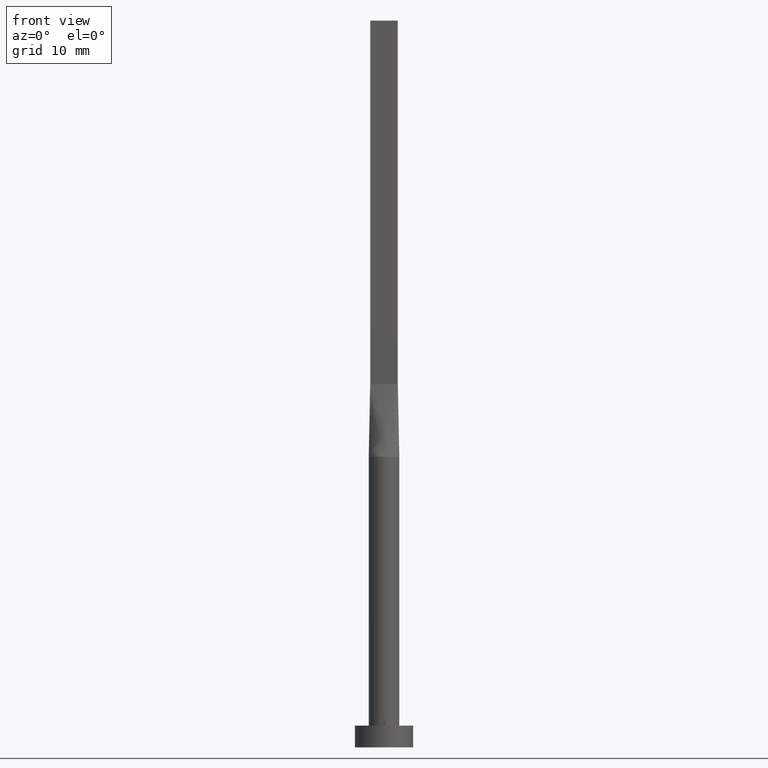
[diagram: clean part render]
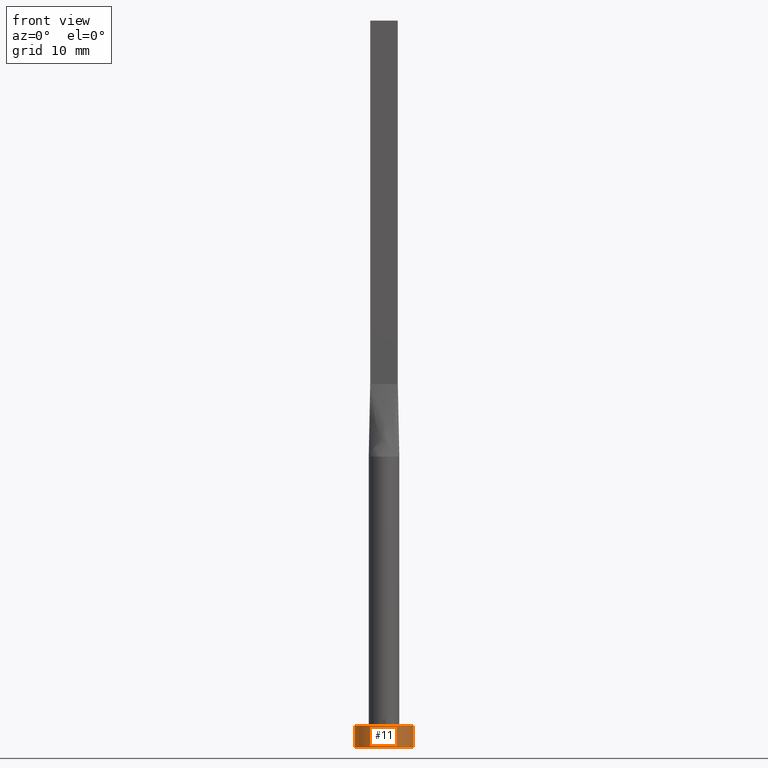
[diagram: same view with one face highlighted and labeled with its STEP entity id]
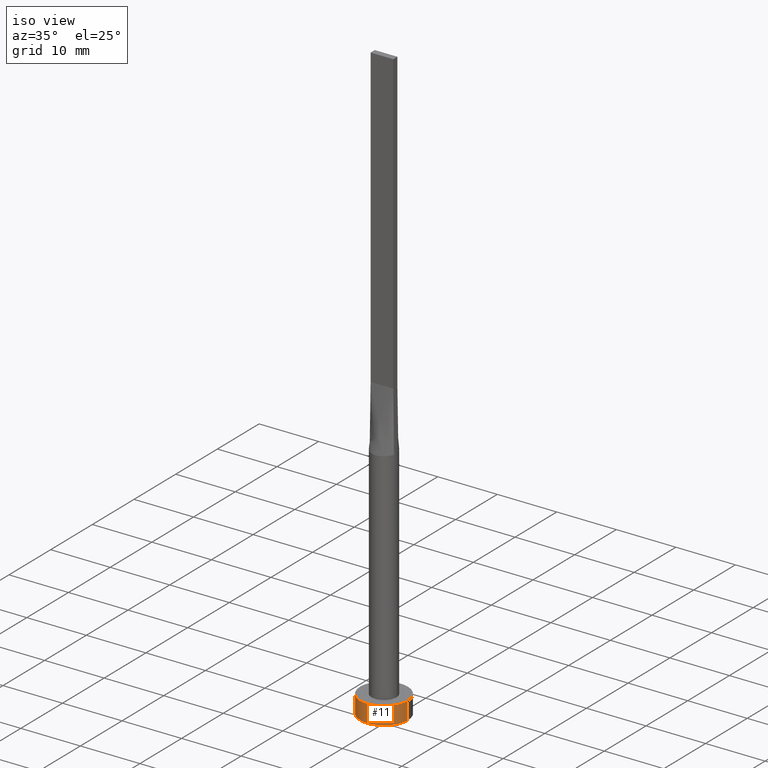
[diagram: same view with one face highlighted and labeled with its STEP entity id]
A machine part, front view. The second image highlights one B-rep face of the part: STEP entity #11.
A second angle (iso view) of the same face is appended — the face is thin or edge-on in the first view.
In plain terms, the highlighted cylindrical surface (edge-blend (fillet) strip) has radius 4 mm, axis along (-0, -0, -1).
Its self-contained STEP definition (entity closure, byte-faithful):
#1 = VERTEX_POINT ( 'NONE', #328 ) ;
#10 = CARTESIAN_POINT ( 'NONE',  ( 4.000000000000000000, 4.898587196589412829E-16, 0.000000000000000000 ) ) ;
#11 = ADVANCED_FACE ( 'NONE', ( #208 ), #339, .T. ) ;
#12 = CARTESIAN_POINT ( 'NONE',  ( 0.000000000000000000, 0.000000000000000000, 3.000000000000000000 ) ) ;
#15 = CARTESIAN_POINT ( 'NONE',  ( 4.000000000000000000, 4.898587196589412829E-16, 3.000000000000000000 ) ) ;
#41 = CIRCLE ( 'NONE', #367, 4.000000000000000000 ) ;
#48 = DIRECTION ( 'NONE',  ( -0.000000000000000000, -0.000000000000000000, -1.000000000000000000 ) ) ;
#49 = CARTESIAN_POINT ( 'NONE',  ( -4.000000000000000000, 0.000000000000000000, 3.000000000000000000 ) ) ;
#144 = EDGE_CURVE ( 'NONE', #307, #299, #183, .T. ) ;
#163 = AXIS2_PLACEMENT_3D ( 'NONE', #380, #513, #253 ) ;
#164 = AXIS2_PLACEMENT_3D ( 'NONE', #12, #547, #426 ) ;
#175 = ORIENTED_EDGE ( 'NONE', *, *, #530, .T. ) ;
#183 = LINE ( 'NONE', #397, #470 ) ;
#208 = FACE_OUTER_BOUND ( 'NONE', #225, .T. ) ;
#211 = ORIENTED_EDGE ( 'NONE', *, *, #318, .T. ) ;
#225 = EDGE_LOOP ( 'NONE', ( #436, #512, #211, #175 ) ) ;
#235 = DIRECTION ( 'NONE',  ( -0.000000000000000000, -0.000000000000000000, -1.000000000000000000 ) ) ;
#253 = DIRECTION ( 'NONE',  ( -1.000000000000000000, 0.000000000000000000, 0.000000000000000000 ) ) ;
#274 = CIRCLE ( 'NONE', #164, 4.000000000000000000 ) ;
#299 = VERTEX_POINT ( 'NONE', #10 ) ;
#307 = VERTEX_POINT ( 'NONE', #15 ) ;
#318 = EDGE_CURVE ( 'NONE', #381, #1, #542, .T. ) ;
#328 = CARTESIAN_POINT ( 'NONE',  ( -4.000000000000000000, 0.000000000000000000, 0.000000000000000000 ) ) ;
#338 = CARTESIAN_POINT ( 'NONE',  ( 0.000000000000000000, 0.000000000000000000, 0.000000000000000000 ) ) ;
#339 = CYLINDRICAL_SURFACE ( 'NONE', #163, 4.000000000000000000 ) ;
#367 = AXIS2_PLACEMENT_3D ( 'NONE', #338, #570, #510 ) ;
#380 = CARTESIAN_POINT ( 'NONE',  ( 0.000000000000000000, 0.000000000000000000, 3.000000000000000000 ) ) ;
#381 = VERTEX_POINT ( 'NONE', #491 ) ;
#397 = CARTESIAN_POINT ( 'NONE',  ( 4.000000000000000000, 4.898587196589412829E-16, 3.000000000000000000 ) ) ;
#426 = DIRECTION ( 'NONE',  ( 1.000000000000000000, 0.000000000000000000, 0.000000000000000000 ) ) ;
#436 = ORIENTED_EDGE ( 'NONE', *, *, #144, .F. ) ;
#447 = VECTOR ( 'NONE', #235, 1000.000000000000000 ) ;
#460 = EDGE_CURVE ( 'NONE', #381, #307, #274, .T. ) ;
#470 = VECTOR ( 'NONE', #48, 1000.000000000000000 ) ;
#491 = CARTESIAN_POINT ( 'NONE',  ( -4.000000000000000000, 0.000000000000000000, 3.000000000000000000 ) ) ;
#510 = DIRECTION ( 'NONE',  ( 1.000000000000000000, 0.000000000000000000, 0.000000000000000000 ) ) ;
#512 = ORIENTED_EDGE ( 'NONE', *, *, #460, .F. ) ;
#513 = DIRECTION ( 'NONE',  ( -0.000000000000000000, -0.000000000000000000, -1.000000000000000000 ) ) ;
#530 = EDGE_CURVE ( 'NONE', #1, #299, #41, .T. ) ;
#542 = LINE ( 'NONE', #49, #447 ) ;
#547 = DIRECTION ( 'NONE',  ( 0.000000000000000000, 0.000000000000000000, 1.000000000000000000 ) ) ;
#570 = DIRECTION ( 'NONE',  ( 0.000000000000000000, 0.000000000000000000, 1.000000000000000000 ) ) ;